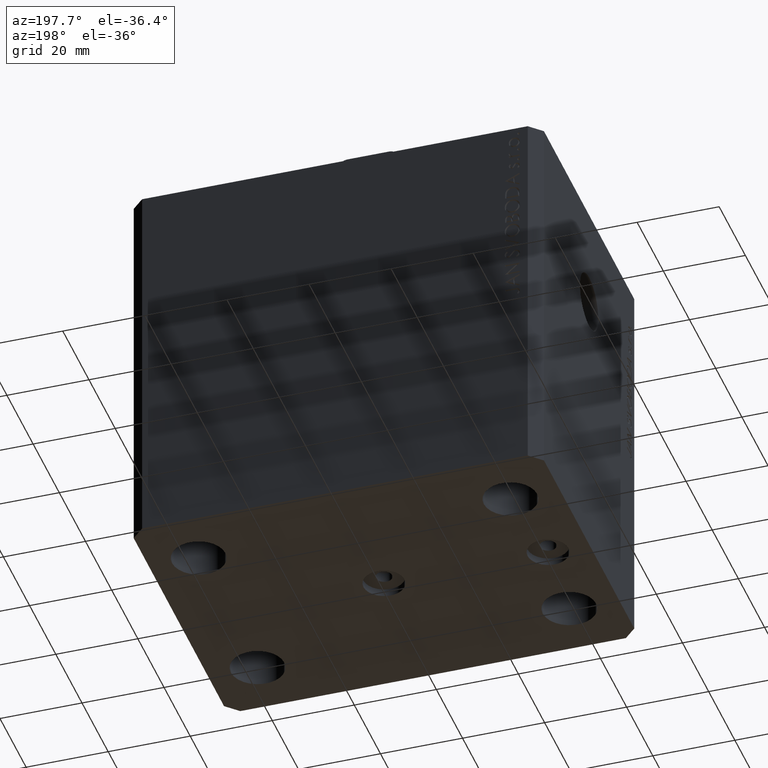
[diagram: clean part render]
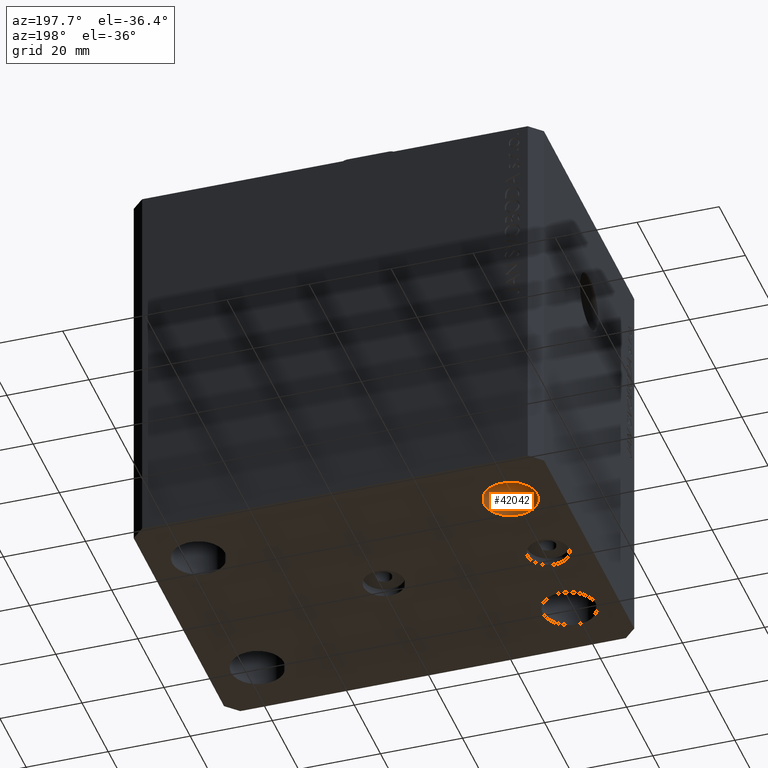
[diagram: same view with one face highlighted and labeled with its STEP entity id]
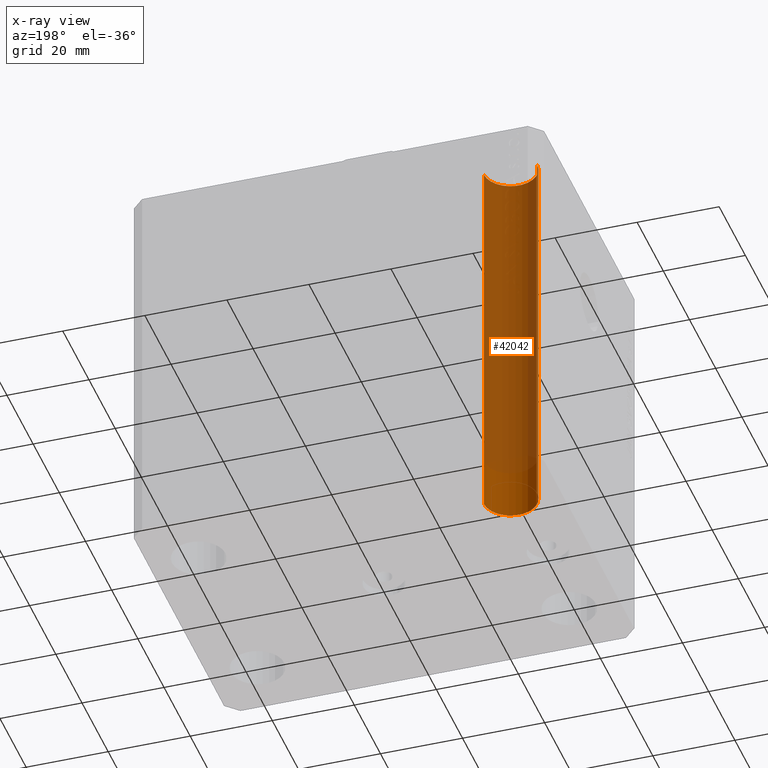
[diagram: x-ray of the same camera — body ghosted, the highlighted face saturated]
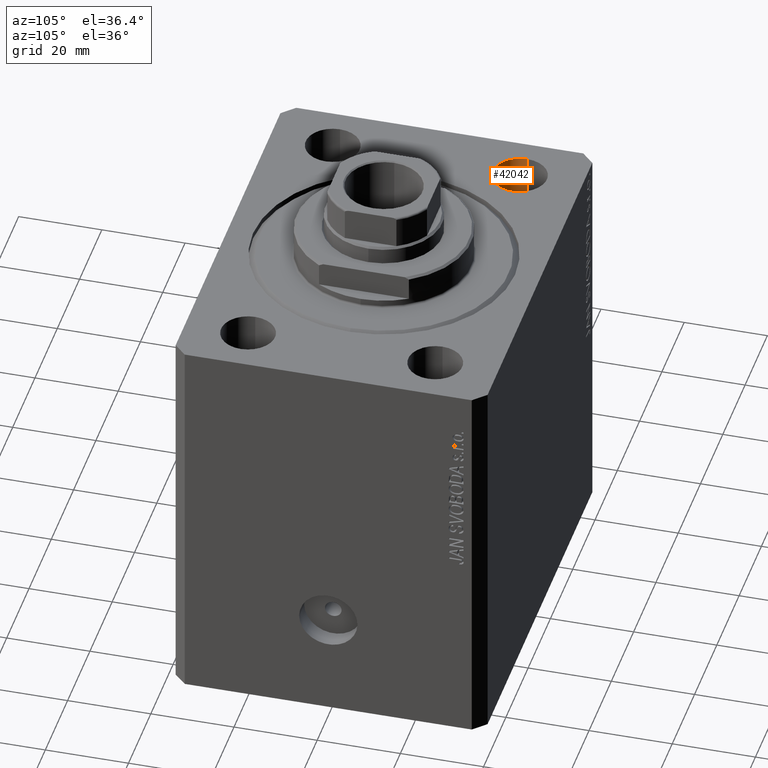
[diagram: same view with one face highlighted and labeled with its STEP entity id]
A machine part, auxiliary view. The second image highlights one B-rep face of the part: STEP entity #42042.
The next image is the same camera in x-ray: the body ghosted, the highlighted face saturated — about 84% of this face is hidden behind the body in this view.
A second angle (auxiliary view) of the same face is appended — the face is thin or edge-on in the first view.
In plain terms, the highlighted cylindrical surface (edge-blend (fillet) strip) has radius 6.5 mm, axis along (0, 0, 1).
Its self-contained STEP definition (entity closure, byte-faithful):
#4692 = DIRECTION ( 'NONE',  ( 1.000000000000000000, 0.000000000000000000, 0.000000000000000000 ) ) ;
#5074 = ORIENTED_EDGE ( 'NONE', *, *, #21469, .F. ) ;
#5234 = VERTEX_POINT ( 'NONE', #10112 ) ;
#5423 = LINE ( 'NONE', #29125, #19293 ) ;
#6507 = DIRECTION ( 'NONE',  ( 1.000000000000000000, 0.000000000000000000, 0.000000000000000000 ) ) ;
#7182 = CIRCLE ( 'NONE', #40298, 6.499999999999999112 ) ;
#7396 = DIRECTION ( 'NONE',  ( -0.000000000000000000, -0.000000000000000000, -1.000000000000000000 ) ) ;
#8120 = CARTESIAN_POINT ( 'NONE',  ( -44.50000000000000000, 22.49999999999999645, 0.000000000000000000 ) ) ;
#8220 = DIRECTION ( 'NONE',  ( -0.000000000000000000, -0.000000000000000000, 1.000000000000000000 ) ) ;
#8443 = CARTESIAN_POINT ( 'NONE',  ( -44.50000000000000000, 22.49999999999999645, -113.3847763108502278 ) ) ;
#9342 = VERTEX_POINT ( 'NONE', #15980 ) ;
#10112 = CARTESIAN_POINT ( 'NONE',  ( -31.50000000000000000, 22.49999999999999645, 0.000000000000000000 ) ) ;
#13276 = CARTESIAN_POINT ( 'NONE',  ( -38.00000000000000000, 22.49999999999999645, 0.000000000000000000 ) ) ;
#13705 = AXIS2_PLACEMENT_3D ( 'NONE', #39191, #7396, #4692 ) ;
#15591 = FACE_OUTER_BOUND ( 'NONE', #36428, .T. ) ;
#15980 = CARTESIAN_POINT ( 'NONE',  ( -44.50000000000000000, 22.49999999999999645, -95.00000000000000000 ) ) ;
#17824 = ORIENTED_EDGE ( 'NONE', *, *, #43111, .T. ) ;
#19293 = VECTOR ( 'NONE', #22573, 1000.000000000000000 ) ;
#21469 = EDGE_CURVE ( 'NONE', #29329, #5234, #5423, .T. ) ;
#22573 = DIRECTION ( 'NONE',  ( -0.000000000000000000, -0.000000000000000000, 1.000000000000000000 ) ) ;
#23774 = CIRCLE ( 'NONE', #13705, 6.499999999999999112 ) ;
#25660 = EDGE_CURVE ( 'NONE', #9342, #43619, #28303, .T. ) ;
#25681 = CARTESIAN_POINT ( 'NONE',  ( -31.50000000000000000, 22.49999999999999645, -95.00000000000000000 ) ) ;
#26933 = EDGE_CURVE ( 'NONE', #43619, #5234, #7182, .T. ) ;
#28303 = LINE ( 'NONE', #8443, #35214 ) ;
#29125 = CARTESIAN_POINT ( 'NONE',  ( -31.50000000000000000, 22.49999999999999645, -113.3847763108502278 ) ) ;
#29329 = VERTEX_POINT ( 'NONE', #25681 ) ;
#29362 = DIRECTION ( 'NONE',  ( 1.000000000000000000, 0.000000000000000000, 0.000000000000000000 ) ) ;
#31054 = ORIENTED_EDGE ( 'NONE', *, *, #25660, .T. ) ;
#32739 = CYLINDRICAL_SURFACE ( 'NONE', #37414, 6.499999999999999112 ) ;
#35214 = VECTOR ( 'NONE', #8220, 1000.000000000000000 ) ;
#35219 = DIRECTION ( 'NONE',  ( -0.000000000000000000, -0.000000000000000000, 1.000000000000000000 ) ) ;
#35291 = ORIENTED_EDGE ( 'NONE', *, *, #26933, .T. ) ;
#36428 = EDGE_LOOP ( 'NONE', ( #17824, #31054, #35291, #5074 ) ) ;
#37414 = AXIS2_PLACEMENT_3D ( 'NONE', #42430, #35219, #29362 ) ;
#39191 = CARTESIAN_POINT ( 'NONE',  ( -38.00000000000000000, 22.49999999999999645, -95.00000000000000000 ) ) ;
#40298 = AXIS2_PLACEMENT_3D ( 'NONE', #13276, #44370, #6507 ) ;
#42042 = ADVANCED_FACE ( 'NONE', ( #15591 ), #32739, .F. ) ;
#42430 = CARTESIAN_POINT ( 'NONE',  ( -38.00000000000000000, 22.49999999999999645, -113.3847763108502278 ) ) ;
#43111 = EDGE_CURVE ( 'NONE', #29329, #9342, #23774, .T. ) ;
#43619 = VERTEX_POINT ( 'NONE', #8120 ) ;
#44370 = DIRECTION ( 'NONE',  ( 0.000000000000000000, 0.000000000000000000, 1.000000000000000000 ) ) ;